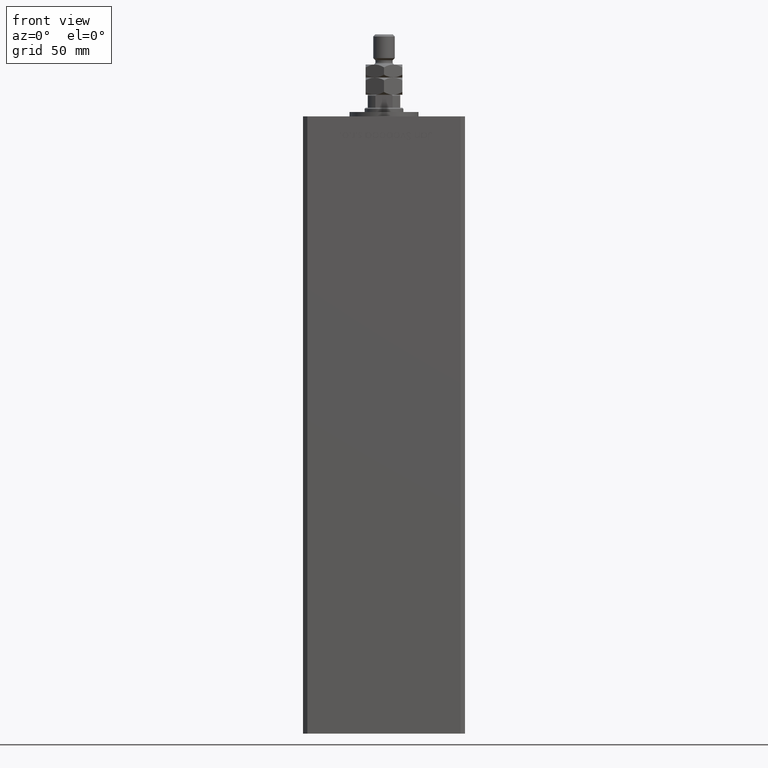
[diagram: clean part render]
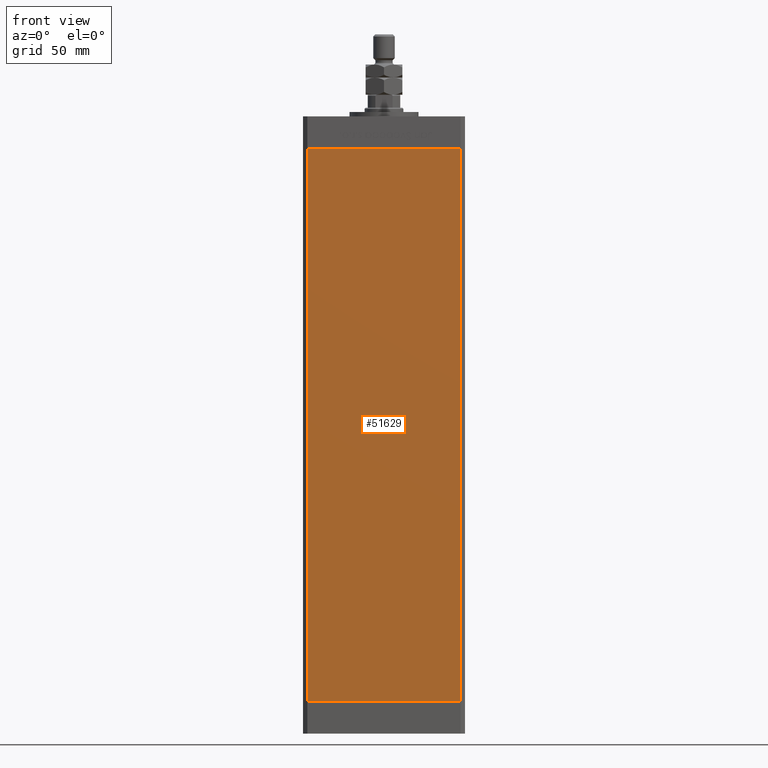
[diagram: same view with one face highlighted and labeled with its STEP entity id]
A machine part, front view. The second image highlights one B-rep face of the part: STEP entity #51629.
In plain terms, the highlighted planar face has unit normal (0, 1, 0).
Its self-contained STEP definition (entity closure, byte-faithful):
#3042 = VECTOR ( 'NONE', #39915, 1000.000000000000000 ) ;
#5305 = EDGE_CURVE ( 'NONE', #32842, #8644, #28198, .T. ) ;
#5374 = LINE ( 'NONE', #18120, #27496 ) ;
#7090 = CARTESIAN_POINT ( 'NONE',  ( 35.49999999999999289, -32.50000000000000000, 256.0000000000000000 ) ) ;
#7769 = VECTOR ( 'NONE', #37345, 1000.000000000000000 ) ;
#8152 = CARTESIAN_POINT ( 'NONE',  ( -35.49999999999999289, -32.50000000000000000, 0.000000000000000000 ) ) ;
#8644 = VERTEX_POINT ( 'NONE', #8152 ) ;
#8932 = VERTEX_POINT ( 'NONE', #33066 ) ;
#12849 = VECTOR ( 'NONE', #40764, 1000.000000000000000 ) ;
#15574 = EDGE_CURVE ( 'NONE', #32842, #8932, #5374, .T. ) ;
#16917 = ORIENTED_EDGE ( 'NONE', *, *, #18808, .F. ) ;
#17251 = CARTESIAN_POINT ( 'NONE',  ( -35.49999999999999289, -32.50000000000000000, 0.000000000000000000 ) ) ;
#18120 = CARTESIAN_POINT ( 'NONE',  ( -35.49999999999999289, -32.50000000000000000, 256.0000000000000000 ) ) ;
#18808 = EDGE_CURVE ( 'NONE', #8932, #39783, #49459, .T. ) ;
#21934 = DIRECTION ( 'NONE',  ( 1.000000000000000000, 0.000000000000000000, 0.000000000000000000 ) ) ;
#24563 = EDGE_LOOP ( 'NONE', ( #47272, #16917, #44112, #51017 ) ) ;
#27496 = VECTOR ( 'NONE', #21934, 1000.000000000000000 ) ;
#28198 = LINE ( 'NONE', #45048, #3042 ) ;
#31426 = DIRECTION ( 'NONE',  ( 0.000000000000000000, -0.000000000000000000, 1.000000000000000000 ) ) ;
#32842 = VERTEX_POINT ( 'NONE', #48748 ) ;
#33066 = CARTESIAN_POINT ( 'NONE',  ( 35.49999999999999289, -32.50000000000000000, 256.0000000000000000 ) ) ;
#37345 = DIRECTION ( 'NONE',  ( 1.000000000000000000, 0.000000000000000000, 0.000000000000000000 ) ) ;
#39783 = VERTEX_POINT ( 'NONE', #39882 ) ;
#39882 = CARTESIAN_POINT ( 'NONE',  ( 35.49999999999999289, -32.50000000000000000, 0.000000000000000000 ) ) ;
#39915 = DIRECTION ( 'NONE',  ( -0.000000000000000000, -0.000000000000000000, -1.000000000000000000 ) ) ;
#40125 = CARTESIAN_POINT ( 'NONE',  ( -35.49999999999999289, -32.50000000000000000, 256.0000000000000000 ) ) ;
#40393 = FACE_OUTER_BOUND ( 'NONE', #24563, .T. ) ;
#40764 = DIRECTION ( 'NONE',  ( -0.000000000000000000, -0.000000000000000000, -1.000000000000000000 ) ) ;
#41614 = AXIS2_PLACEMENT_3D ( 'NONE', #40125, #48808, #31426 ) ;
#41687 = LINE ( 'NONE', #17251, #7769 ) ;
#43666 = PLANE ( 'NONE',  #41614 ) ;
#44112 = ORIENTED_EDGE ( 'NONE', *, *, #15574, .F. ) ;
#45048 = CARTESIAN_POINT ( 'NONE',  ( -35.49999999999999289, -32.50000000000000000, 256.0000000000000000 ) ) ;
#46626 = EDGE_CURVE ( 'NONE', #8644, #39783, #41687, .T. ) ;
#47272 = ORIENTED_EDGE ( 'NONE', *, *, #46626, .T. ) ;
#48748 = CARTESIAN_POINT ( 'NONE',  ( -35.49999999999999289, -32.50000000000000000, 256.0000000000000000 ) ) ;
#48808 = DIRECTION ( 'NONE',  ( 0.000000000000000000, 1.000000000000000000, 0.000000000000000000 ) ) ;
#49459 = LINE ( 'NONE', #7090, #12849 ) ;
#51017 = ORIENTED_EDGE ( 'NONE', *, *, #5305, .T. ) ;
#51629 = ADVANCED_FACE ( 'NONE', ( #40393 ), #43666, .F. ) ;